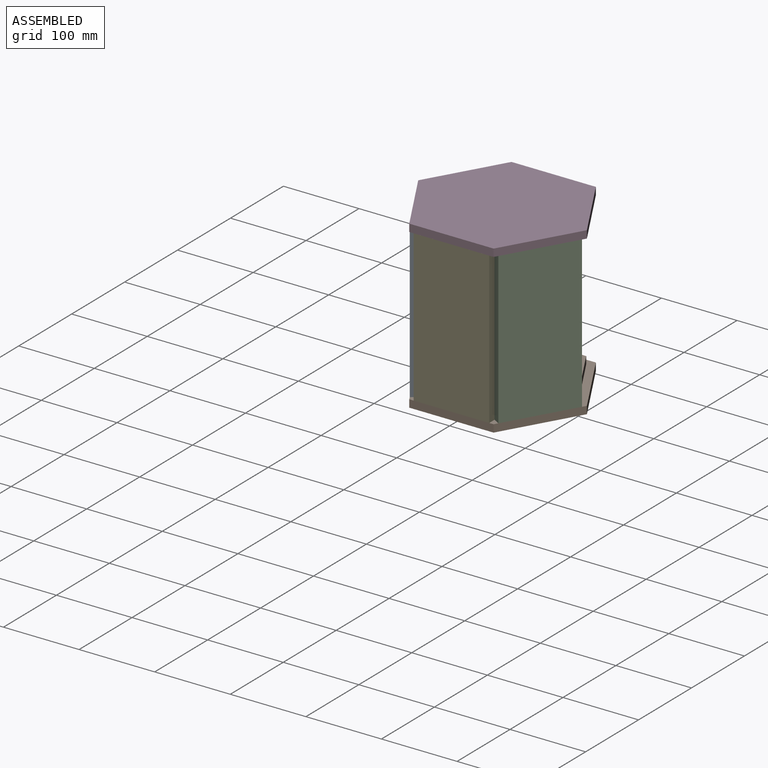
[diagram: assembled view]
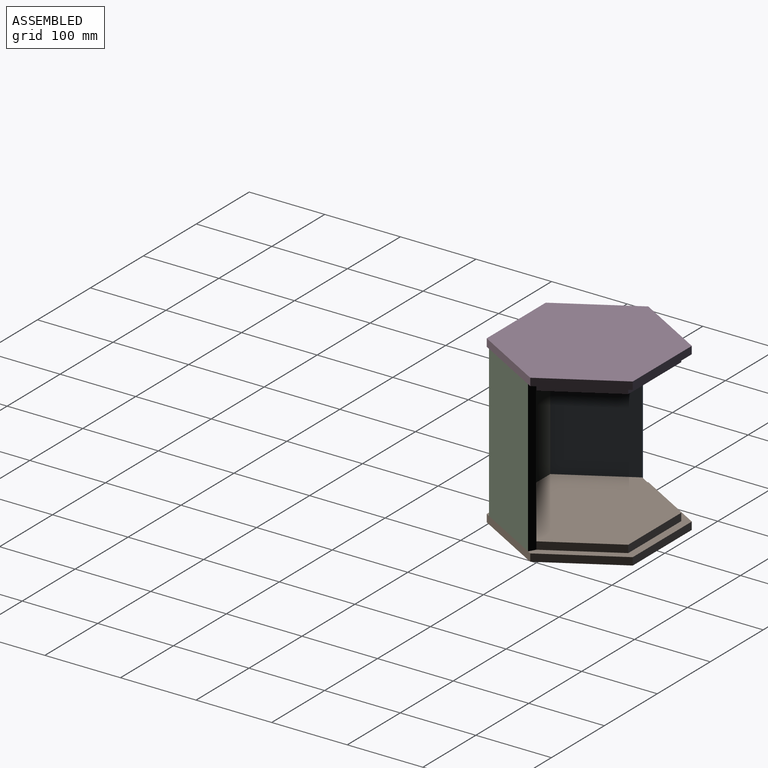
[diagram: assembled view, second angle]
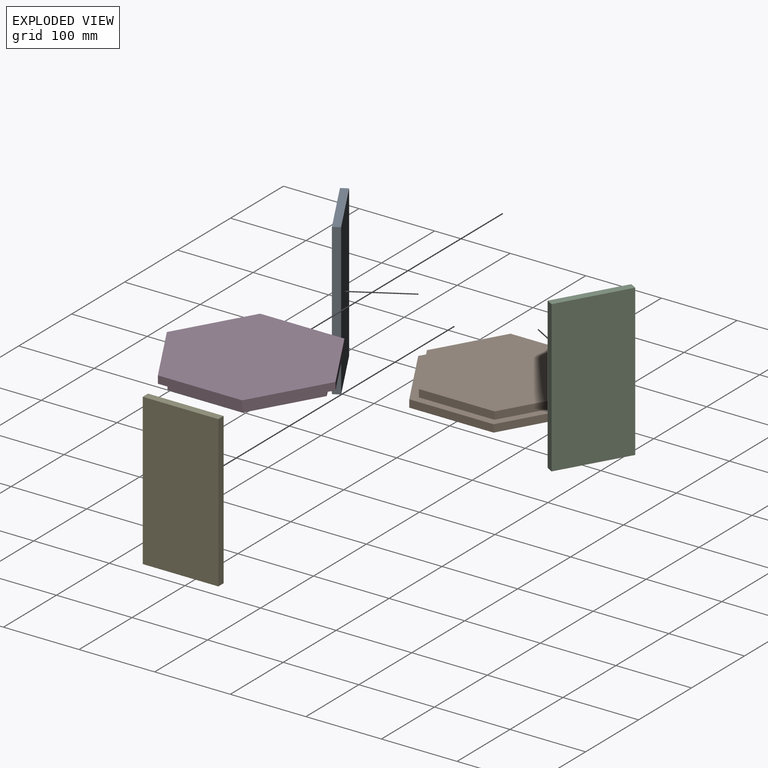
[diagram: exploded view]
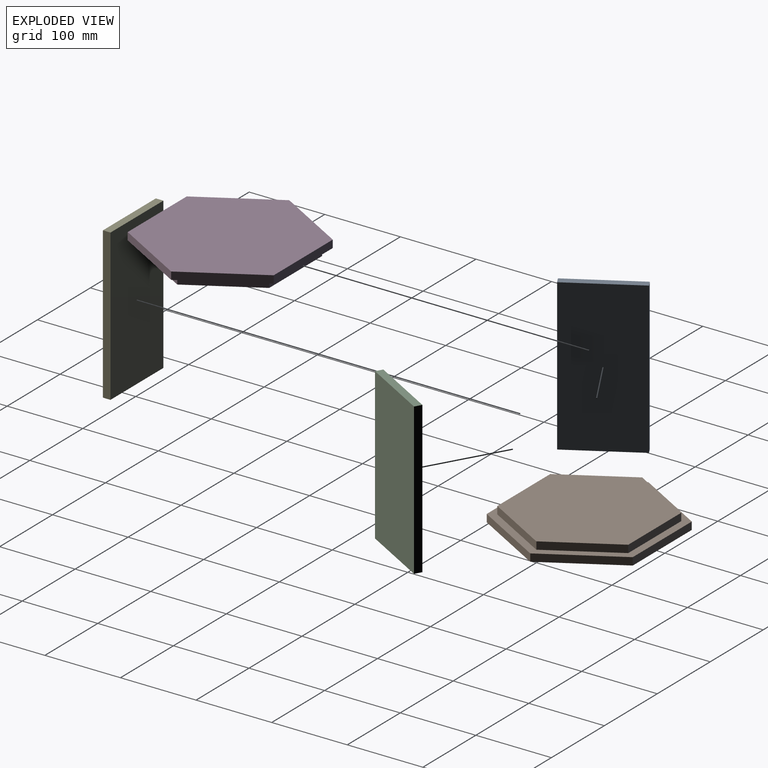
[diagram: exploded view, second angle]
ASSEMBLY  parts=5 mates=4
PART A: 6 faces, bbox 100x10x200 mm
  f0: plane 100x10mm, normal (0,0,1), area 1000mm2, adj f1,f3,f4,f5
  f1: plane 200x10mm, normal (-1,0,0), area 2000mm2, adj f0,f2,f4,f5
  f2: plane 100x10mm, normal (0,0,-1), area 1000mm2, adj f1,f3,f4,f5
  f3: plane 200x10mm, normal (1,0,0), area 2000mm2, adj f0,f2,f4,f5
  f4: plane 200x100mm, normal (0,-1,0), area 20000mm2, adj f0,f1,f2,f3
  f5: plane 200x100mm, normal (0,1,0), area 20000mm2, adj f0,f1,f2,f3
PART B: 15 faces, bbox 223.1x20x193.2 mm
  f0: plane 86.6x50mm, normal (-0.87,0,-0.5), area 1000mm2, adj f1,f5,f6,f7
  f1: plane 100x10mm, normal (0,0,-1), area 1000mm2, adj f0,f2,f6,f7
  f2: plane 86.6x50mm, normal (0.87,0,-0.5), area 1000mm2, adj f1,f3,f6,f7
  f3: plane 86.6x50mm, normal (0.87,0,0.5), area 1000mm2, adj f2,f4,f6,f7
  f4: plane 100x10mm, normal (0,0,1), area 1000mm2, adj f3,f5,f6,f7
  f5: plane 86.6x50mm, normal (-0.87,0,0.5), area 1000mm2, adj f0,f4,f6,f7
  f6: plane 200x173.21mm, normal (0,-1,0), area 25980.8mm2, adj f0,f1,f2,f3,f4,f5
  f7: plane 223.09x193.21mm, normal (0,-1,0), area 6346.4mm2, adj f0,f1,f2,f3,f4,f5,f8,f9
  f8: plane 96.6x55.77mm, normal (-0.87,0,0.5), area 1115.5mm2, adj f7,f9,f13,f14
  f9: plane 96.6x55.77mm, normal (-0.87,0,-0.5), area 1115.5mm2, adj f7,f8,f10,f14
  f10: plane 111.55x10mm, normal (0,0,-1), area 1115.5mm2, adj f7,f9,f11,f14
  f11: plane 96.6x55.77mm, normal (0.87,0,-0.5), area 1115.5mm2, adj f7,f10,f12,f14
  f12: plane 96.6x55.77mm, normal (0.87,0,0.5), area 1115.5mm2, adj f7,f11,f13,f14
  f13: plane 111.55x10mm, normal (0,0,1), area 1115.5mm2, adj f7,f8,f12,f14
  f14: plane 223.09x193.21mm, normal (0,1,0), area 32327.2mm2, adj f8,f9,f10,f11,f12,f13
PART C: same geometry as A
PART D: same geometry as B
PART E: same geometry as A
PLACE A rot(axis=(0,0,1),120deg) t=(-58.66,-91.6,-10)mm
PLACE B rot(axis=(0,-0.71,0.71),180deg) t=(0,0,-10)mm
PLACE C rot(axis=(-0.5,0.87,0),180deg) t=(100,0,190)mm
PLACE D rot(axis=(1,0,0),90deg) t=(0,0,190)mm
PLACE E rot(axis=(0,1,0),180deg) t=(50,-86.6,190)mm
MATE fastened A.f4 <-> B.f3  axis (0.87,0.5,0) through (-75,-43.3,-10)mm
MATE fastened B.f4 <-> E.f5  axis (0,-1,0) through (0,-86.6,-10)mm
MATE fastened D.f4 <-> E.f5  axis (0,-1,0) through (0,-86.6,190)mm
MATE fastened C.f5 <-> B.f5  axis (-0.87,0.5,0) through (75,-43.3,-10)mm
